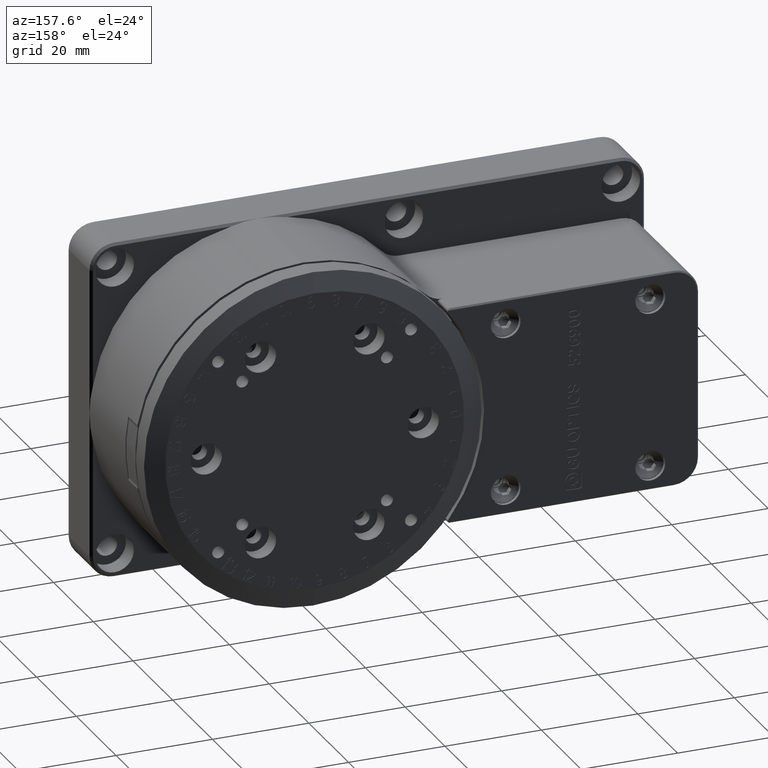
[diagram: clean part render]
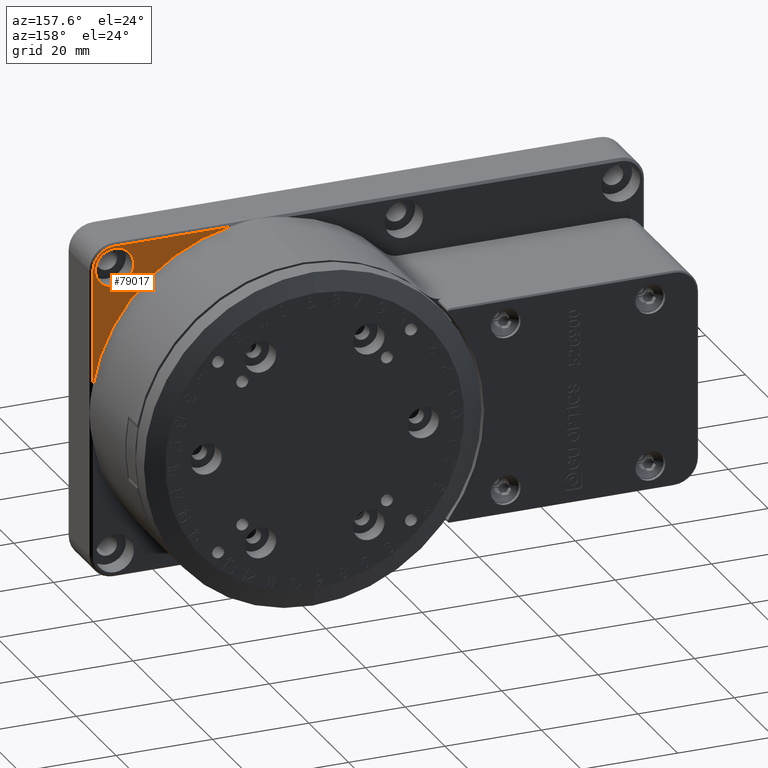
[diagram: same view with one face highlighted and labeled with its STEP entity id]
A machine part, auxiliary view. The second image highlights one B-rep face of the part: STEP entity #79017.
In plain terms, the highlighted planar face has unit normal (-0, 1, 0).
Its self-contained STEP definition (entity closure, byte-faithful):
#341 = VERTEX_POINT ( 'NONE', #28796 ) ;
#3490 = CIRCLE ( 'NONE', #15211, 35.00000000000000000 ) ;
#5953 = CARTESIAN_POINT ( 'NONE',  ( -81.77999999999998700, -13.50000000000000000, 34.49999999999938200 ) ) ;
#7018 = CARTESIAN_POINT ( 'NONE',  ( 5.894913061279520000, -13.49999999999951900, 34.49999999999921100 ) ) ;
#8242 = EDGE_CURVE ( 'NONE', #341, #14150, #24141, .T. ) ;
#8598 = EDGE_CURVE ( 'NONE', #40721, #14150, #17267, .T. ) ;
#8652 = AXIS2_PLACEMENT_3D ( 'NONE', #35940, #17312, #61099 ) ;
#8836 = CARTESIAN_POINT ( 'NONE',  ( 34.50000007075252000, -13.49999999939655000, 29.99999996107124600 ) ) ;
#10371 = VECTOR ( 'NONE', #81036, 1000.000000000000000 ) ;
#13046 = FACE_BOUND ( 'NONE', #36636, .T. ) ;
#14150 = VERTEX_POINT ( 'NONE', #8836 ) ;
#15006 = FACE_OUTER_BOUND ( 'NONE', #80402, .T. ) ;
#15211 = AXIS2_PLACEMENT_3D ( 'NONE', #56351, #18831, #62596 ) ;
#15822 = CARTESIAN_POINT ( 'NONE',  ( 30.00000000000000000, -13.50000000000000000, 26.00000000000000000 ) ) ;
#17267 = CIRCLE ( 'NONE', #23177, 4.499999999409282300 ) ;
#17312 = DIRECTION ( 'NONE',  ( -0.0000000000000000000, 1.000000000000000000, 0.0000000000000000000 ) ) ;
#18831 = DIRECTION ( 'NONE',  ( 0.0000000000000000000, 1.000000000000000000, 2.478176394252581700E-017 ) ) ;
#19500 = VERTEX_POINT ( 'NONE', #7018 ) ;
#20950 = DIRECTION ( 'NONE',  ( -1.880790961315663300E-031, -1.000000000000000000, -4.336808689942021700E-016 ) ) ;
#23177 = AXIS2_PLACEMENT_3D ( 'NONE', #44732, #44666, #44580 ) ;
#24141 = LINE ( 'NONE', #58137, #74114 ) ;
#24260 = ORIENTED_EDGE ( 'NONE', *, *, #8242, .F. ) ;
#24751 = CARTESIAN_POINT ( 'NONE',  ( 29.99999995063874900, -13.49999999969819700, 34.49999999999946000 ) ) ;
#25456 = ORIENTED_EDGE ( 'NONE', *, *, #57096, .T. ) ;
#27530 = EDGE_CURVE ( 'NONE', #37128, #38024, #33235, .T. ) ;
#28796 = CARTESIAN_POINT ( 'NONE',  ( 34.50000007104739600, -13.50000007104739200, 5.894912645470658900 ) ) ;
#31691 = CARTESIAN_POINT ( 'NONE',  ( 30.00000000000000000, -13.50000000000000400, 34.00000000000000000 ) ) ;
#33235 = CIRCLE ( 'NONE', #75620, 4.000000000000000000 ) ;
#33549 = DIRECTION ( 'NONE',  ( -1.880790961315663300E-031, -1.000000000000000000, -4.336808689942021700E-016 ) ) ;
#35940 = CARTESIAN_POINT ( 'NONE',  ( -81.77999999999998700, -13.50000000000000000, 35.88000000000000300 ) ) ;
#36636 = EDGE_LOOP ( 'NONE', ( #78571, #81057 ) ) ;
#37128 = VERTEX_POINT ( 'NONE', #31691 ) ;
#37160 = CIRCLE ( 'NONE', #73682, 4.000000000000000000 ) ;
#38024 = VERTEX_POINT ( 'NONE', #15822 ) ;
#40721 = VERTEX_POINT ( 'NONE', #24751 ) ;
#44580 = DIRECTION ( 'NONE',  ( 0.0000000000000000000, 0.0000000000000000000, -1.000000000000000000 ) ) ;
#44666 = DIRECTION ( 'NONE',  ( -0.0000000000000000000, 1.000000000000000000, -0.0000000000000000000 ) ) ;
#44732 = CARTESIAN_POINT ( 'NONE',  ( 30.00000000000000000, -13.49999999939655000, 30.00000000000000000 ) ) ;
#54822 = PLANE ( 'NONE',  #8652 ) ;
#55853 = EDGE_CURVE ( 'NONE', #38024, #37128, #37160, .T. ) ;
#56351 = CARTESIAN_POINT ( 'NONE',  ( 0.0000000000000000000, -13.49999999999904100, 1.573642010359235000E-017 ) ) ;
#57096 = EDGE_CURVE ( 'NONE', #19500, #40721, #60358, .T. ) ;
#58066 = DIRECTION ( 'NONE',  ( 0.0000000000000000000, 0.0000000000000000000, 1.000000000000000000 ) ) ;
#58137 = CARTESIAN_POINT ( 'NONE',  ( 34.50000014209575000, -13.50000014209574900, -0.5999999999997003300 ) ) ;
#58471 = CARTESIAN_POINT ( 'NONE',  ( 30.00000000000000000, -13.50000000000000200, 30.00000000000000400 ) ) ;
#60358 = LINE ( 'NONE', #5953, #10371 ) ;
#61099 = DIRECTION ( 'NONE',  ( 0.0000000000000000000, -0.0000000000000000000, 1.000000000000000000 ) ) ;
#62596 = DIRECTION ( 'NONE',  ( 0.0000000000000000000, -4.956352788505163400E-017, 1.000000000000000000 ) ) ;
#64725 = DIRECTION ( 'NONE',  ( 0.0000000000000000000, -4.336808689942017700E-016, 1.000000000000000000 ) ) ;
#68461 = ORIENTED_EDGE ( 'NONE', *, *, #71163, .F. ) ;
#70481 = ORIENTED_EDGE ( 'NONE', *, *, #8598, .T. ) ;
#71039 = CARTESIAN_POINT ( 'NONE',  ( 30.00000000000000000, -13.50000000000000200, 30.00000000000000400 ) ) ;
#71163 = EDGE_CURVE ( 'NONE', #19500, #341, #3490, .T. ) ;
#73682 = AXIS2_PLACEMENT_3D ( 'NONE', #58471, #20950, #64725 ) ;
#74114 = VECTOR ( 'NONE', #58066, 1000.000000000000000 ) ;
#75620 = AXIS2_PLACEMENT_3D ( 'NONE', #71039, #33549, #77344 ) ;
#77344 = DIRECTION ( 'NONE',  ( 0.0000000000000000000, -4.336808689942017700E-016, 1.000000000000000000 ) ) ;
#78571 = ORIENTED_EDGE ( 'NONE', *, *, #27530, .T. ) ;
#79017 = ADVANCED_FACE ( 'NONE', ( #15006, #13046 ), #54822, .T. ) ;
#80402 = EDGE_LOOP ( 'NONE', ( #25456, #70481, #24260, #68461 ) ) ;
#81036 = DIRECTION ( 'NONE',  ( 1.000000000000000000, 0.0000000000000000000, 0.0000000000000000000 ) ) ;
#81057 = ORIENTED_EDGE ( 'NONE', *, *, #55853, .T. ) ;